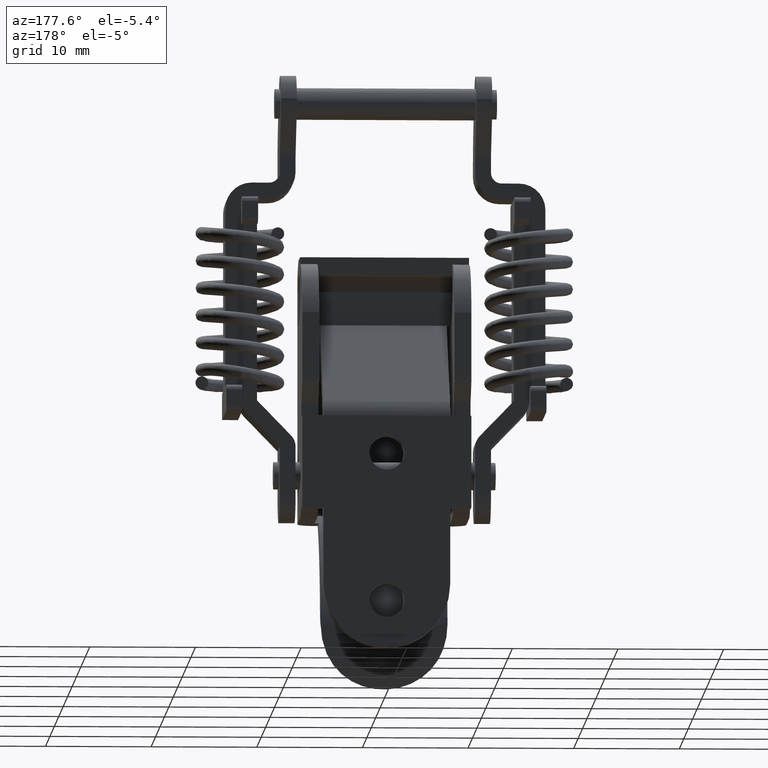
[diagram: clean part render]
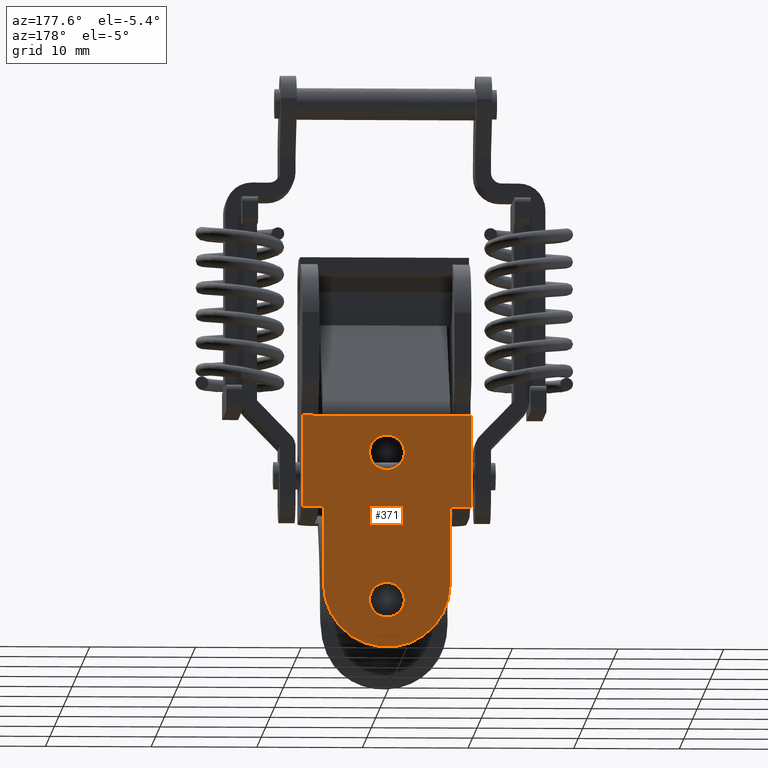
[diagram: same view with one face highlighted and labeled with its STEP entity id]
A machine part, auxiliary view. The second image highlights one B-rep face of the part: STEP entity #371.
In plain terms, the highlighted planar face has unit normal (0, -1, 0).
Its self-contained STEP definition (entity closure, byte-faithful):
#371=ADVANCED_FACE('',(#1601,#1602,#1603),#1600,.F.);
#1600=PLANE('',#3264);
#1601=FACE_OUTER_BOUND('',#3265,.T.);
#1602=FACE_BOUND('',#3266,.T.);
#1603=FACE_BOUND('',#3267,.T.);
#3261=CARTESIAN_POINT('',(-9.60000000000E+00,1.00000000000E+01,-1.02586689791E+01));
#3262=DIRECTION('',(0.00000000000E+00,-1.00000000000E+00,0.00000000000E+00));
#3263=DIRECTION('',(0.00000000000E+00,0.00000000000E+00,-1.00000000000E+00));
#3264=AXIS2_PLACEMENT_3D('',#3261,#3262,#3263);
#3265=EDGE_LOOP('',(#6518,#6519,#6520,#6521,#6522,#6523,#6524,#6525,#6526,#6527));
#3266=EDGE_LOOP('',(#6528,#6529));
#3267=EDGE_LOOP('',(#6530,#6531));
#6518=ORIENTED_EDGE('',*,*,#7372,.T.);
#6519=ORIENTED_EDGE('',*,*,#7373,.T.);
#6520=ORIENTED_EDGE('',*,*,#7374,.T.);
#6521=ORIENTED_EDGE('',*,*,#7375,.T.);
#6522=ORIENTED_EDGE('',*,*,#7376,.F.);
#6523=ORIENTED_EDGE('',*,*,#7377,.F.);
#6524=ORIENTED_EDGE('',*,*,#7378,.F.);
#6525=ORIENTED_EDGE('',*,*,#7379,.T.);
#6526=ORIENTED_EDGE('',*,*,#7380,.T.);
#6527=ORIENTED_EDGE('',*,*,#7381,.F.);
#6528=ORIENTED_EDGE('',*,*,#7382,.T.);
#6529=ORIENTED_EDGE('',*,*,#7383,.T.);
#6530=ORIENTED_EDGE('',*,*,#7384,.T.);
#6531=ORIENTED_EDGE('',*,*,#7385,.T.);
#7372=EDGE_CURVE('',#9696,#9697,#9698,.T.);
#7373=EDGE_CURVE('',#9697,#9704,#9705,.T.);
#7374=EDGE_CURVE('',#9704,#9711,#9712,.T.);
#7375=EDGE_CURVE('',#9711,#9718,#9719,.T.);
#7376=EDGE_CURVE('',#9725,#9718,#9726,.T.);
#7377=EDGE_CURVE('',#9732,#9725,#9733,.T.);
#7378=EDGE_CURVE('',#9739,#9732,#9740,.T.);
#7379=EDGE_CURVE('',#9739,#9746,#9747,.T.);
#7380=EDGE_CURVE('',#9746,#9753,#9754,.T.);
#7381=EDGE_CURVE('',#9696,#9753,#9760,.T.);
#7382=EDGE_CURVE('',#9766,#9767,#9768,.T.);
#7383=EDGE_CURVE('',#9767,#9766,#9774,.T.);
#7384=EDGE_CURVE('',#9780,#9781,#9782,.T.);
#7385=EDGE_CURVE('',#9781,#9780,#9788,.T.);
#9696=VERTEX_POINT('',#12679);
#9697=VERTEX_POINT('',#12680);
#9698=LINE('',#12681,#12682);
#9704=VERTEX_POINT('',#12684);
#9705=LINE('',#12685,#12686);
#9711=VERTEX_POINT('',#12688);
#9712=LINE('',#12689,#12690);
#9718=VERTEX_POINT('',#12692);
#9719=LINE('',#12693,#12694);
#9725=VERTEX_POINT('',#12696);
#9726=LINE('',#12697,#12698);
#9732=VERTEX_POINT('',#12700);
#9733=LINE('',#12701,#12702);
#9739=VERTEX_POINT('',#12704);
#9740=LINE('',#12705,#12706);
#9746=VERTEX_POINT('',#12708);
#9747=LINE('',#12709,#12710);
#9753=VERTEX_POINT('',#12712);
#9754=LINE('',#12713,#12714);
#9760=CIRCLE('',#12719,6.00000000000E+00);
#9766=VERTEX_POINT('',#12720);
#9767=VERTEX_POINT('',#12721);
#9768=CIRCLE('',#12725,1.65000000000E+00);
#9774=CIRCLE('',#12729,1.65000000000E+00);
#9780=VERTEX_POINT('',#12730);
#9781=VERTEX_POINT('',#12731);
#9782=CIRCLE('',#12735,1.65000000000E+00);
#9788=CIRCLE('',#12739,1.65000000000E+00);
#12679=CARTESIAN_POINT('',(-6.00000000000E+00,1.00000000000E+01,-2.84620295211E+01));
#12680=CARTESIAN_POINT('',(-6.00000000000E+00,1.00000000000E+01,-2.11620295211E+01));
#12681=CARTESIAN_POINT('',(-6.00000000000E+00,1.00000000000E+01,-2.84620295211E+01));
#12682=VECTOR('',#12683,7.30000000000E+00);
#12683=DIRECTION('',(-2.02456012381E-13,0.00000000000E+00,1.00000000000E+00));
#12684=CARTESIAN_POINT('',(-8.00000000000E+00,1.00000000000E+01,-2.11620295211E+01));
#12685=CARTESIAN_POINT('',(-6.00000000000E+00,1.00000000000E+01,-2.11620295211E+01));
#12686=VECTOR('',#12687,2.00000000000E+00);
#12687=DIRECTION('',(-1.00000000000E+00,0.00000000000E+00,7.10542735761E-15));
#12688=CARTESIAN_POINT('',(-8.00000000000E+00,1.00000000000E+01,-1.24589744829E+01));
#12689=CARTESIAN_POINT('',(-8.00000000000E+00,1.00000000000E+01,-2.11620295211E+01));
#12690=VECTOR('',#12691,8.70305503816E+00);
#12691=DIRECTION('',(0.00000000000E+00,0.00000000000E+00,1.00000000000E+00));
#12692=CARTESIAN_POINT('',(-6.00000000000E+00,1.00000000000E+01,-1.24589744829E+01));
#12693=CARTESIAN_POINT('',(-8.00000000000E+00,1.00000000000E+01,-1.24589744829E+01));
#12694=VECTOR('',#12695,2.00000000000E+00);
#12695=DIRECTION('',(1.00000000000E+00,0.00000000000E+00,0.00000000000E+00));
#12696=CARTESIAN_POINT('',(6.00000000000E+00,1.00000000000E+01,-1.24589744829E+01));
#12697=CARTESIAN_POINT('',(6.00000000000E+00,1.00000000000E+01,-1.24589744829E+01));
#12698=VECTOR('',#12699,1.20000000000E+01);
#12699=DIRECTION('',(-1.00000000000E+00,0.00000000000E+00,0.00000000000E+00));
#12700=CARTESIAN_POINT('',(8.00000000000E+00,1.00000000000E+01,-1.24589744829E+01));
#12701=CARTESIAN_POINT('',(8.00000000000E+00,1.00000000000E+01,-1.24589744829E+01));
#12702=VECTOR('',#12703,2.00000000000E+00);
#12703=DIRECTION('',(-1.00000000000E+00,0.00000000000E+00,0.00000000000E+00));
#12704=CARTESIAN_POINT('',(8.00000000000E+00,1.00000000000E+01,-2.11620295211E+01));
#12705=CARTESIAN_POINT('',(8.00000000000E+00,1.00000000000E+01,-2.11620295211E+01));
#12706=VECTOR('',#12707,8.70305503815E+00);
#12707=DIRECTION('',(0.00000000000E+00,0.00000000000E+00,1.00000000000E+00));
#12708=CARTESIAN_POINT('',(6.00000000000E+00,1.00000000000E+01,-2.11620295211E+01));
#12709=CARTESIAN_POINT('',(8.00000000000E+00,1.00000000000E+01,-2.11620295211E+01));
#12710=VECTOR('',#12711,2.00000000000E+00);
#12711=DIRECTION('',(-1.00000000000E+00,0.00000000000E+00,-1.06581410364E-14));
#12712=CARTESIAN_POINT('',(6.00000000000E+00,1.00000000000E+01,-2.84620295211E+01));
#12713=CARTESIAN_POINT('',(6.00000000000E+00,1.00000000000E+01,-2.11620295211E+01));
#12714=VECTOR('',#12715,7.30000000000E+00);
#12715=DIRECTION('',(-2.21801268372E-13,0.00000000000E+00,-1.00000000000E+00));
#12716=CARTESIAN_POINT('',(1.42108547152E-14,1.00000000000E+01,-2.84620295211E+01));
#12717=DIRECTION('',(0.00000000000E+00,-1.00000000000E+00,0.00000000000E+00));
#12718=DIRECTION('',(1.00000000000E+00,0.00000000000E+00,1.83690953073E-16));
#12719=AXIS2_PLACEMENT_3D('',#12716,#12717,#12718);
#12720=CARTESIAN_POINT('',(0.00000000000E+00,1.00000000000E+01,-2.83120295211E+01));
#12721=CARTESIAN_POINT('',(2.22044604925E-16,1.00000000000E+01,-3.16120295211E+01));
#12722=CARTESIAN_POINT('',(0.00000000000E+00,1.00000000000E+01,-2.99620295211E+01));
#12723=DIRECTION('',(0.00000000000E+00,-1.00000000000E+00,0.00000000000E+00));
#12724=DIRECTION('',(-1.22460635382E-16,0.00000000000E+00,1.00000000000E+00));
#12725=AXIS2_PLACEMENT_3D('',#12722,#12723,#12724);
#12726=CARTESIAN_POINT('',(0.00000000000E+00,1.00000000000E+01,-2.99620295211E+01));
#12727=DIRECTION('',(0.00000000000E+00,-1.00000000000E+00,0.00000000000E+00));
#12728=DIRECTION('',(-1.22460635382E-16,0.00000000000E+00,1.00000000000E+00));
#12729=AXIS2_PLACEMENT_3D('',#12726,#12727,#12728);
#12730=CARTESIAN_POINT('',(0.00000000000E+00,1.00000000000E+01,-1.43120295211E+01));
#12731=CARTESIAN_POINT('',(2.22044604925E-16,1.00000000000E+01,-1.76120295211E+01));
#12732=CARTESIAN_POINT('',(0.00000000000E+00,1.00000000000E+01,-1.59620295211E+01));
#12733=DIRECTION('',(0.00000000000E+00,-1.00000000000E+00,0.00000000000E+00));
#12734=DIRECTION('',(-1.22460635382E-16,0.00000000000E+00,1.00000000000E+00));
#12735=AXIS2_PLACEMENT_3D('',#12732,#12733,#12734);
#12736=CARTESIAN_POINT('',(0.00000000000E+00,1.00000000000E+01,-1.59620295211E+01));
#12737=DIRECTION('',(0.00000000000E+00,-1.00000000000E+00,0.00000000000E+00));
#12738=DIRECTION('',(-1.22460635382E-16,0.00000000000E+00,1.00000000000E+00));
#12739=AXIS2_PLACEMENT_3D('',#12736,#12737,#12738);